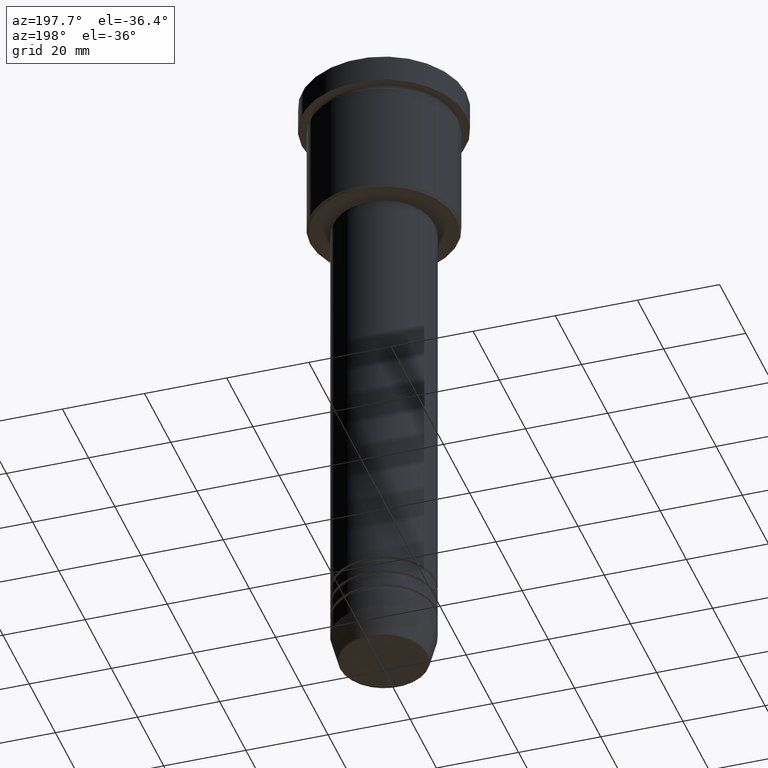
[diagram: clean part render]
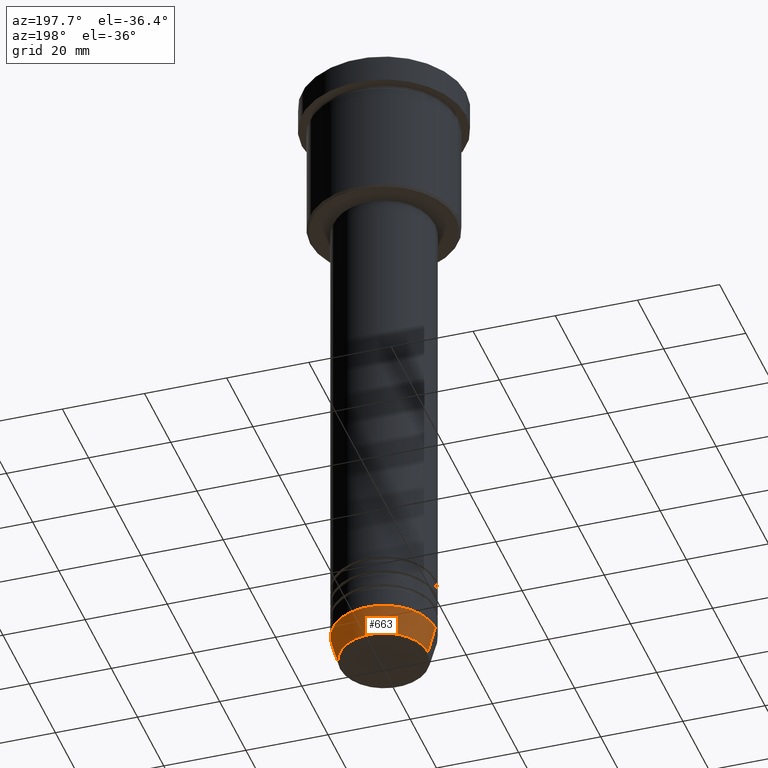
[diagram: same view with one face highlighted and labeled with its STEP entity id]
A machine part, auxiliary view. The second image highlights one B-rep face of the part: STEP entity #663.
In plain terms, the highlighted conical surface has half-angle 15 deg.
Its self-contained STEP definition (entity closure, byte-faithful):
#77 = CARTESIAN_POINT ( 'NONE',  ( 0.000000000000000000, 0.000000000000000000, -159.6294095225512706 ) ) ;
#84 = FACE_OUTER_BOUND ( 'NONE', #429, .T. ) ;
#168 = ORIENTED_EDGE ( 'NONE', *, *, #1057, .T. ) ;
#177 = DIRECTION ( 'NONE',  ( -0.2588190451025203509, 3.169619151431760011E-17, 0.9659258262890684232 ) ) ;
#181 = DIRECTION ( 'NONE',  ( 0.2588190451025203509, 0.000000000000000000, 0.9659258262890684232 ) ) ;
#196 = CARTESIAN_POINT ( 'NONE',  ( 12.50000000000000000, 0.000000000000000000, -153.0000000000000000 ) ) ;
#236 = VERTEX_POINT ( 'NONE', #1021 ) ;
#329 = EDGE_CURVE ( 'NONE', #890, #908, #987, .T. ) ;
#367 = CARTESIAN_POINT ( 'NONE',  ( 0.000000000000000000, 0.000000000000000000, -153.0000000000000000 ) ) ;
#384 = DIRECTION ( 'NONE',  ( 1.000000000000000000, 0.000000000000000000, 0.000000000000000000 ) ) ;
#408 = AXIS2_PLACEMENT_3D ( 'NONE', #834, #1109, #606 ) ;
#429 = EDGE_LOOP ( 'NONE', ( #554, #168, #484, #569 ) ) ;
#435 = VERTEX_POINT ( 'NONE', #526 ) ;
#484 = ORIENTED_EDGE ( 'NONE', *, *, #832, .F. ) ;
#526 = CARTESIAN_POINT ( 'NONE',  ( -10.72365507213719660, 1.422038742429750713E-15, -159.6294095225512706 ) ) ;
#554 = ORIENTED_EDGE ( 'NONE', *, *, #657, .T. ) ;
#569 = ORIENTED_EDGE ( 'NONE', *, *, #329, .F. ) ;
#606 = DIRECTION ( 'NONE',  ( 1.000000000000000000, 0.000000000000000000, 0.000000000000000000 ) ) ;
#612 = CARTESIAN_POINT ( 'NONE',  ( 10.72365507213719660, 0.000000000000000000, -159.6294095225512706 ) ) ;
#635 = DIRECTION ( 'NONE',  ( 1.000000000000000000, 0.000000000000000000, 0.000000000000000000 ) ) ;
#647 = CIRCLE ( 'NONE', #408, 12.50000000000000000 ) ;
#657 = EDGE_CURVE ( 'NONE', #890, #435, #1151, .T. ) ;
#663 = ADVANCED_FACE ( 'NONE', ( #84 ), #779, .T. ) ;
#687 = CARTESIAN_POINT ( 'NONE',  ( 12.50000000000000000, 0.000000000000000000, -153.0000000000000000 ) ) ;
#727 = DIRECTION ( 'NONE',  ( -0.000000000000000000, -0.000000000000000000, 1.000000000000000000 ) ) ;
#732 = LINE ( 'NONE', #1072, #895 ) ;
#779 = CONICAL_SURFACE ( 'NONE', #801, 12.50000000000000000, 0.2617993877991490193 ) ;
#801 = AXIS2_PLACEMENT_3D ( 'NONE', #367, #727, #384 ) ;
#832 = EDGE_CURVE ( 'NONE', #908, #236, #647, .T. ) ;
#834 = CARTESIAN_POINT ( 'NONE',  ( 0.000000000000000000, 0.000000000000000000, -153.0000000000000000 ) ) ;
#890 = VERTEX_POINT ( 'NONE', #612 ) ;
#893 = VECTOR ( 'NONE', #181, 1000.000000000000000 ) ;
#895 = VECTOR ( 'NONE', #177, 1000.000000000000000 ) ;
#908 = VERTEX_POINT ( 'NONE', #687 ) ;
#987 = LINE ( 'NONE', #196, #893 ) ;
#1021 = CARTESIAN_POINT ( 'NONE',  ( -12.50000000000000000, 1.530808498934191521E-15, -153.0000000000000000 ) ) ;
#1057 = EDGE_CURVE ( 'NONE', #435, #236, #732, .T. ) ;
#1072 = CARTESIAN_POINT ( 'NONE',  ( -12.50000000000000000, 1.530808498934191521E-15, -153.0000000000000000 ) ) ;
#1084 = AXIS2_PLACEMENT_3D ( 'NONE', #77, #1177, #635 ) ;
#1109 = DIRECTION ( 'NONE',  ( -0.000000000000000000, -0.000000000000000000, 1.000000000000000000 ) ) ;
#1151 = CIRCLE ( 'NONE', #1084, 10.72365507213719660 ) ;
#1177 = DIRECTION ( 'NONE',  ( -0.000000000000000000, -0.000000000000000000, 1.000000000000000000 ) ) ;